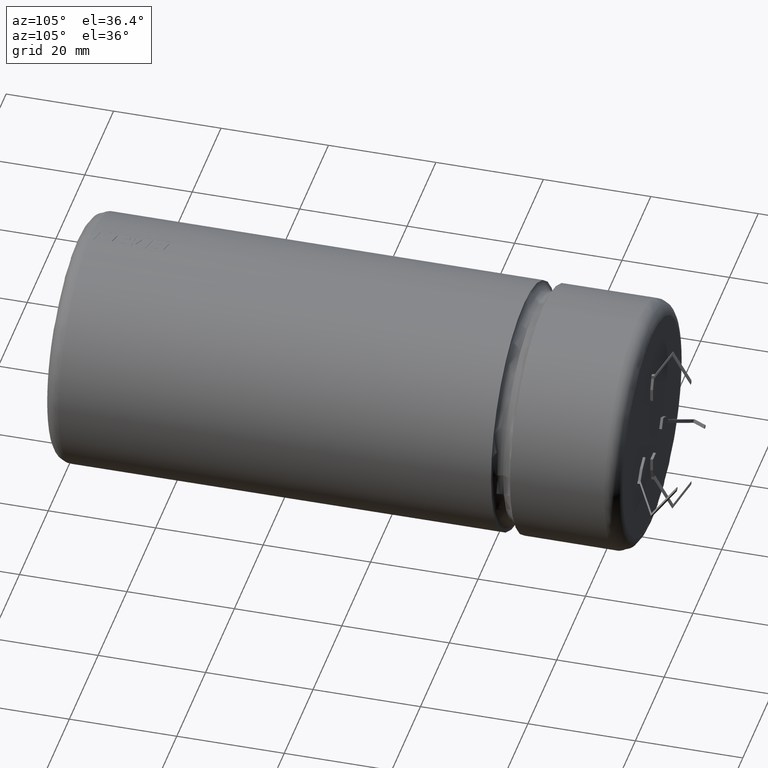
[diagram: clean part render]
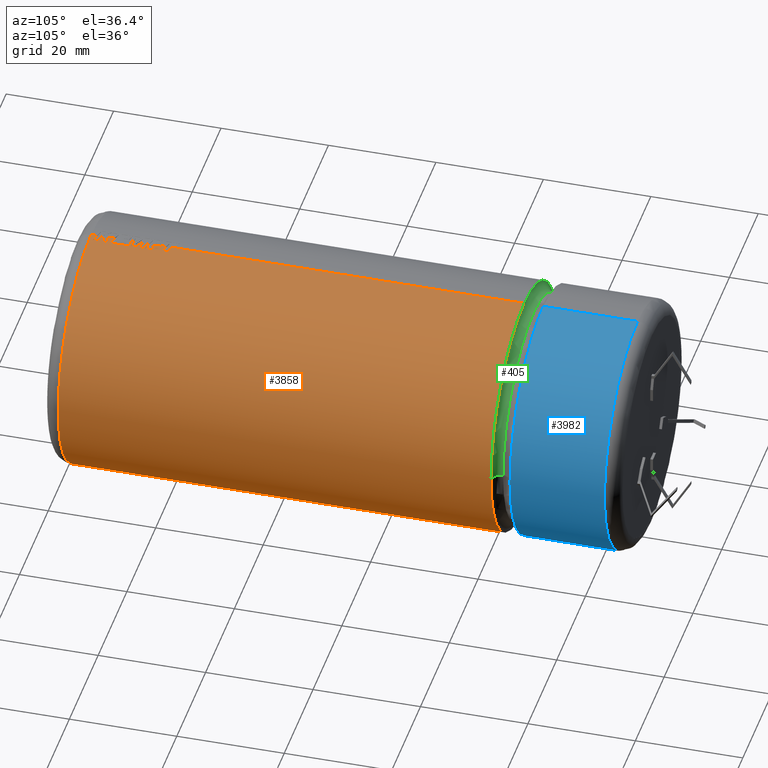
[diagram: same view with three faces highlighted in distinct colors, each labeled with its STEP entity id]
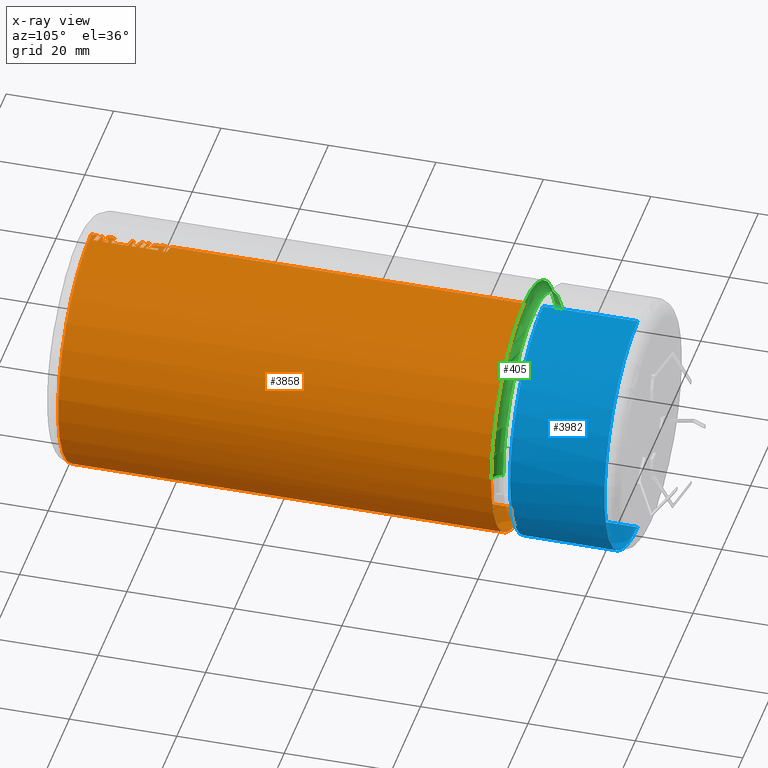
[diagram: x-ray of the same camera — body ghosted, the three highlighted faces saturated]
A machine part, auxiliary view with three faces highlighted in distinct colors.
The next image is the same camera in x-ray (body ghosted, the three faces saturated) — at least one of them is partly hidden behind the body in this view.
Their STEP definitions:

[orange] entity #3858 — the highlighted cylindrical surface (partial cylindrical patch) has radius 23 mm, axis along (-0, -1, -0).
#9 = ORIENTED_EDGE ( 'NONE', *, *, #4312, .F. ) ;
#13 = DIRECTION ( 'NONE',  ( 0.0000000000000000000, 0.0000000000000000000, -1.000000000000000000 ) ) ;
#17 = CARTESIAN_POINT ( 'NONE',  ( 1.534169148053103400, 15.36704791797069400, 22.94877611170500100 ) ) ;
#67 = ORIENTED_EDGE ( 'NONE', *, *, #3135, .F. ) ;
#85 = VECTOR ( 'NONE', #3942, 1000.000000000000000 ) ;
#86 = VECTOR ( 'NONE', #462, 1000.000000000000000 ) ;
#89 = CARTESIAN_POINT ( 'NONE',  ( -5.545487515719014800E-010, 13.15961153160837000, 22.99999126037143100 ) ) ;
#98 = DIRECTION ( 'NONE',  ( 0.0000000000000000000, 1.000000000000000000, 0.0000000000000000000 ) ) ;
#100 = CARTESIAN_POINT ( 'NONE',  ( 1.534169148053099000, 13.08215582357082100, 22.94877611170500100 ) ) ;
#107 = EDGE_CURVE ( 'NONE', #2229, #1386, #1707, .T. ) ;
#137 = VECTOR ( 'NONE', #1677, 1000.000000000000000 ) ;
#145 = VECTOR ( 'NONE', #4190, 1000.000000000000000 ) ;
#147 = VERTEX_POINT ( 'NONE', #885 ) ;
#148 = ORIENTED_EDGE ( 'NONE', *, *, #1935, .F. ) ;
#161 = EDGE_CURVE ( 'NONE', #1588, #3467, #3480, .T. ) ;
#167 = ORIENTED_EDGE ( 'NONE', *, *, #2162, .T. ) ;
#183 = CARTESIAN_POINT ( 'NONE',  ( 0.5117685127285573900, 10.16392618901911700, 22.99998708028456200 ) ) ;
#184 = CARTESIAN_POINT ( 'NONE',  ( 1.702671213006160400E-012, 15.67845905064953300, 22.99999999087098600 ) ) ;
#210 = VERTEX_POINT ( 'NONE', #1047 ) ;
#238 = B_SPLINE_CURVE_WITH_KNOTS ( 'NONE', 3,
 ( #3579, #1003, #3950, #1783 ),
 .UNSPECIFIED., .F., .F.,
 ( 4, 4 ),
 ( 0.4297595284897932600, 1.000000000000000000 ),
 .UNSPECIFIED. ) ;
#242 = CARTESIAN_POINT ( 'NONE',  ( 2.816687638038912400E-015, 107.0000000000000000, 23.00000000000000000 ) ) ;
#269 = DIRECTION ( 'NONE',  ( -1.264299165142146600E-018, 1.000000000000000000, -0.0000000000000000000 ) ) ;
#270 = VERTEX_POINT ( 'NONE', #4712 ) ;
#273 = B_SPLINE_CURVE_WITH_KNOTS ( 'NONE', 3,
 ( #3524, #4211, #977, #2041 ),
 .UNSPECIFIED., .F., .F.,
 ( 4, 4 ),
 ( 0.06501777450579886200, 1.000000000000000000 ),
 .UNSPECIFIED. ) ;
#289 = CARTESIAN_POINT ( 'NONE',  ( 0.5117686438564941200, 11.83874825964579200, 22.99998686078155100 ) ) ;
#303 = EDGE_CURVE ( 'NONE', #2813, #1579, #4490, .T. ) ;
#311 = B_SPLINE_CURVE_WITH_KNOTS ( 'NONE', 3,
 ( #1396, #2500, #3243, #341 ),
 .UNSPECIFIED., .F., .F.,
 ( 4, 4 ),
 ( 0.4923300189517310100, 1.000000000000000000 ),
 .UNSPECIFIED. ) ;
#320 = CARTESIAN_POINT ( 'NONE',  ( 1.534169148053099000, 11.94969606425973300, 22.94877611170500100 ) ) ;
#341 = CARTESIAN_POINT ( 'NONE',  ( 1.534169148053099000, 13.08215582357082100, 22.94877611170500100 ) ) ;
#347 = VERTEX_POINT ( 'NONE', #4670 ) ;
#365 = EDGE_CURVE ( 'NONE', #3432, #210, #838, .T. ) ;
#372 = EDGE_CURVE ( 'NONE', #2841, #270, #3568, .T. ) ;
#385 = VECTOR ( 'NONE', #2727, 1000.000000000000000 ) ;
#399 = VERTEX_POINT ( 'NONE', #1322 ) ;
#408 = CARTESIAN_POINT ( 'NONE',  ( -1.580628256438853400E-010, 4.738169971809772300, 22.99999995430822300 ) ) ;
#411 = VERTEX_POINT ( 'NONE', #1732 ) ;
#444 = CARTESIAN_POINT ( 'NONE',  ( 1.342772583593151200, 15.42147901137058600, 22.96157133454427100 ) ) ;
#445 = CARTESIAN_POINT ( 'NONE',  ( -5.541144337341309400E-010, 3.805932655905925400, 22.99999126038471100 ) ) ;
#451 = B_SPLINE_CURVE_WITH_KNOTS ( 'NONE', 3,
 ( #445, #1179, #1495, #3382 ),
 .UNSPECIFIED., .F., .F.,
 ( 4, 4 ),
 ( 0.4923300189481510900, 1.000000000000000000 ),
 .UNSPECIFIED. ) ;
#453 = CARTESIAN_POINT ( 'NONE',  ( 0.5117690575717199800, 16.54241926910932700, 22.99999046607069500 ) ) ;
#462 = DIRECTION ( 'NONE',  ( -0.0000000000000000000, -1.000000000000000000, -0.0000000000000000000 ) ) ;
#472 = EDGE_CURVE ( 'NONE', #147, #4082, #1454, .T. ) ;
#484 = ORIENTED_EDGE ( 'NONE', *, *, #3041, .F. ) ;
#508 = VECTOR ( 'NONE', #523, 1000.000000000000000 ) ;
#523 = DIRECTION ( 'NONE',  ( 0.0000000000000000000, -1.000000000000000000, 0.0000000000000000000 ) ) ;
#546 = CARTESIAN_POINT ( 'NONE',  ( 0.5117699352664487600, 4.518030646898691500, 22.99999909383691900 ) ) ;
#564 = CARTESIAN_POINT ( 'NONE',  ( -2.719909890773063200E-009, 10.31086991139122600, 22.99999469648611600 ) ) ;
#567 = CARTESIAN_POINT ( 'NONE',  ( -5.545487515719014800E-010, 13.15961153160837000, 22.99999126037143100 ) ) ;
#569 = ORIENTED_EDGE ( 'NONE', *, *, #1118, .F. ) ;
#597 = ORIENTED_EDGE ( 'NONE', *, *, #3039, .T. ) ;
#619 = B_SPLINE_CURVE_WITH_KNOTS ( 'NONE', 3,
 ( #17, #444, #4741, #736 ),
 .UNSPECIFIED., .F., .F.,
 ( 4, 4 ),
 ( 0.0000000000000000000, 1.000000000000000000 ),
 .UNSPECIFIED. ) ;
#627 = EDGE_CURVE ( 'NONE', #719, #3525, #729, .T. ) ;
#642 = VERTEX_POINT ( 'NONE', #1191 ) ;
#652 = ORIENTED_EDGE ( 'NONE', *, *, #3984, .F. ) ;
#670 = CARTESIAN_POINT ( 'NONE',  ( 0.0000000000000000000, 107.0000000000000000, -23.00000000000000000 ) ) ;
#699 = CARTESIAN_POINT ( 'NONE',  ( 0.2083069767634659600, 14.32130150560970200, 22.99905668073000700 ) ) ;
#719 = VERTEX_POINT ( 'NONE', #4074 ) ;
#729 = LINE ( 'NONE', #3989, #2834 ) ;
#736 = CARTESIAN_POINT ( 'NONE',  ( 0.9595591795991091900, 15.53034119635228500, 22.97997489513091600 ) ) ;
#739 = ORIENTED_EDGE ( 'NONE', *, *, #1600, .T. ) ;
#774 = VECTOR ( 'NONE', #2448, 1000.000000000000000 ) ;
#794 = CARTESIAN_POINT ( 'NONE',  ( 1.534169148053099000, 3.364711372035880600, 22.94877611170500100 ) ) ;
#805 = CARTESIAN_POINT ( 'NONE',  ( 2.816687638038912400E-015, 107.0000000000000000, 23.00000000000000000 ) ) ;
#809 = VERTEX_POINT ( 'NONE', #1218 ) ;
#820 = CARTESIAN_POINT ( 'NONE',  ( 0.5117675329517238400, 6.906550024290792700, 22.99998215737006300 ) ) ;
#822 = VERTEX_POINT ( 'NONE', #3431 ) ;
#838 = LINE ( 'NONE', #1254, #508 ) ;
#881 = VECTOR ( 'NONE', #3224, 1000.000000000000000 ) ;
#885 = CARTESIAN_POINT ( 'NONE',  ( 2.816687638038912400E-015, 83.23083999999998600, 23.00000000000000000 ) ) ;
#897 = ORIENTED_EDGE ( 'NONE', *, *, #3957, .T. ) ;
#909 = CARTESIAN_POINT ( 'NONE',  ( 1.023536417692448600, 10.01698266052192200, 22.98291287686808100 ) ) ;
#926 = DIRECTION ( 'NONE',  ( -0.0000000000000000000, -1.000000000000000000, -0.0000000000000000000 ) ) ;
#952 = CARTESIAN_POINT ( 'NONE',  ( -2.686691147045094000E-009, 12.39058633229400600, 22.99999457792159100 ) ) ;
#964 = CARTESIAN_POINT ( 'NONE',  ( 0.2083069767634659600, 14.32130150560970200, 22.99905668073000700 ) ) ;
#977 = CARTESIAN_POINT ( 'NONE',  ( 1.023538858133867400, 5.149015077030108900, 22.98291271371995100 ) ) ;
#987 = CARTESIAN_POINT ( 'NONE',  ( 1.534169148053099000, 13.08215582357082100, 22.94877611170500100 ) ) ;
#1003 = CARTESIAN_POINT ( 'NONE',  ( 0.5117684314080288600, 10.54955777684789600, 22.99998709882466100 ) ) ;
#1018 = EDGE_CURVE ( 'NONE', #1588, #4536, #4702, .T. ) ;
#1031 = ORIENTED_EDGE ( 'NONE', *, *, #2243, .T. ) ;
#1047 = CARTESIAN_POINT ( 'NONE',  ( 0.9595591795991136300, 14.10675263911506700, 22.97997489513091600 ) ) ;
#1060 = EDGE_CURVE ( 'NONE', #2806, #809, #238, .T. ) ;
#1118 = EDGE_CURVE ( 'NONE', #4082, #2813, #2483, .T. ) ;
#1136 = CYLINDRICAL_SURFACE ( 'NONE', #1985, 23.00000000000000000 ) ;
#1179 = CARTESIAN_POINT ( 'NONE',  ( 0.5117675325467899700, 3.658859492326283800, 22.99998215745202400 ) ) ;
#1191 = CARTESIAN_POINT ( 'NONE',  ( -8.650916759431642100E-011, 4.664714496277658100, 22.99999995432964900 ) ) ;
#1210 = ORIENTED_EDGE ( 'NONE', *, *, #3921, .T. ) ;
#1218 = CARTESIAN_POINT ( 'NONE',  ( 1.534169148053099000, 10.49218539282259500, 22.94877611170500100 ) ) ;
#1220 = B_SPLINE_CURVE_WITH_KNOTS ( 'NONE', 3,
 ( #4319, #2885, #289, #2118 ),
 .UNSPECIFIED., .F., .F.,
 ( 4, 4 ),
 ( 0.0000000000000000000, 0.5675075130715838700 ),
 .UNSPECIFIED. ) ;
#1224 = CARTESIAN_POINT ( 'NONE',  ( 1.534169148053099000, 6.274610831861079600, 22.94877611170500100 ) ) ;
#1239 = CARTESIAN_POINT ( 'NONE',  ( 0.2083069767634705400, 15.61894881153988400, 22.99905668073000700 ) ) ;
#1250 = EDGE_CURVE ( 'NONE', #2603, #2841, #2491, .T. ) ;
#1254 = CARTESIAN_POINT ( 'NONE',  ( 0.9595591795991091900, 15.53034119635228500, 22.97997489513091600 ) ) ;
#1277 = CARTESIAN_POINT ( 'NONE',  ( 0.2083069767634659600, 14.32130150560970200, 22.99905668073000700 ) ) ;
#1282 = LINE ( 'NONE', #320, #85 ) ;
#1296 = VERTEX_POINT ( 'NONE', #794 ) ;
#1322 = CARTESIAN_POINT ( 'NONE',  ( -2.719909890773063200E-009, 10.31086991139122600, 22.99999469648611600 ) ) ;
#1347 = LINE ( 'NONE', #4031, #1405 ) ;
#1375 = CARTESIAN_POINT ( 'NONE',  ( 1.534169148053099000, 6.612015992414371500, 22.94877611170500100 ) ) ;
#1386 = VERTEX_POINT ( 'NONE', #1563 ) ;
#1396 = CARTESIAN_POINT ( 'NONE',  ( -5.549950498436779800E-010, 13.52376457485996600, 22.99999126035782000 ) ) ;
#1397 = LINE ( 'NONE', #3025, #385 ) ;
#1405 = VECTOR ( 'NONE', #4063, 1000.000000000000000 ) ;
#1454 = CIRCLE ( 'NONE', #3052, 23.00000000000000000 ) ;
#1480 = DIRECTION ( 'NONE',  ( 0.0000000000000000000, 1.000000000000000000, 0.0000000000000000000 ) ) ;
#1483 = CARTESIAN_POINT ( 'NONE',  ( 0.5117690575498696800, 17.40382186468515300, 22.99999046607695500 ) ) ;
#1485 = EDGE_LOOP ( 'NONE', ( #2588, #897, #2654, #148, #4194, #1554, #4115, #3335, #2342, #2115, #2211, #4026, #484, #2777, #1711, #2712, #2213, #3935, #1973, #3539, #3953, #739, #9, #2405, #3334, #3202, #167, #4081, #2301, #1517, #1210, #2385, #67, #652, #1031, #597, #4250, #569 ) ) ;
#1495 = CARTESIAN_POINT ( 'NONE',  ( 1.023534972328162400, 3.511786359071848100, 22.98291297349342700 ) ) ;
#1496 = VERTEX_POINT ( 'NONE', #4554 ) ;
#1505 = CARTESIAN_POINT ( 'NONE',  ( -2.774080918137409300E-009, 17.55091878504546400, 22.99999674500881900 ) ) ;
#1517 = ORIENTED_EDGE ( 'NONE', *, *, #1607, .F. ) ;
#1546 = B_SPLINE_CURVE_WITH_KNOTS ( 'NONE', 3,
 ( #2578, #453, #4043, #1887 ),
 .UNSPECIFIED., .F., .F.,
 ( 4, 4 ),
 ( 0.3708533802764623600, 1.000000000000000000 ),
 .UNSPECIFIED. ) ;
#1549 = CARTESIAN_POINT ( 'NONE',  ( 1.023534973159984800, 6.759283936277891600, 22.98291297343781600 ) ) ;
#1554 = ORIENTED_EDGE ( 'NONE', *, *, #627, .T. ) ;
#1563 = CARTESIAN_POINT ( 'NONE',  ( 1.534169148053103400, 9.870037818277833000, 22.94877611170500100 ) ) ;
#1566 = EDGE_CURVE ( 'NONE', #3722, #1584, #3004, .T. ) ;
#1572 = VECTOR ( 'NONE', #1590, 1000.000000000000000 ) ;
#1579 = VERTEX_POINT ( 'NONE', #2390 ) ;
#1584 = VERTEX_POINT ( 'NONE', #567 ) ;
#1588 = VERTEX_POINT ( 'NONE', #3841 ) ;
#1590 = DIRECTION ( 'NONE',  ( 0.0000000000000000000, 1.000000000000000000, 0.0000000000000000000 ) ) ;
#1600 = EDGE_CURVE ( 'NONE', #2806, #399, #3666, .T. ) ;
#1607 = EDGE_CURVE ( 'NONE', #1990, #2603, #273, .T. ) ;
#1611 = CARTESIAN_POINT ( 'NONE',  ( 1.534169148053099000, 6.612015992414371500, 22.94877611170500100 ) ) ;
#1657 = DIRECTION ( 'NONE',  ( -0.0000000000000000000, -1.000000000000000000, -0.0000000000000000000 ) ) ;
#1666 = CARTESIAN_POINT ( 'NONE',  ( 1.023536368501108300, 12.09666031236955600, 22.98291288015661500 ) ) ;
#1673 = CARTESIAN_POINT ( 'NONE',  ( -8.650916759431642100E-011, 4.664714496277658100, 22.99999995432964900 ) ) ;
#1677 = DIRECTION ( 'NONE',  ( -0.0000000000000000000, -1.000000000000000000, -0.0000000000000000000 ) ) ;
#1691 = EDGE_CURVE ( 'NONE', #4290, #2229, #2016, .T. ) ;
#1707 = LINE ( 'NONE', #2590, #4323 ) ;
#1711 = ORIENTED_EDGE ( 'NONE', *, *, #2466, .F. ) ;
#1722 = CARTESIAN_POINT ( 'NONE',  ( 0.5117684803295734500, 12.24362322776237600, 22.99998689779360500 ) ) ;
#1729 = VERTEX_POINT ( 'NONE', #2459 ) ;
#1732 = CARTESIAN_POINT ( 'NONE',  ( -2.774080918137409300E-009, 17.55091878504546400, 22.99999674500881900 ) ) ;
#1750 = VECTOR ( 'NONE', #1657, 1000.000000000000000 ) ;
#1753 = CARTESIAN_POINT ( 'NONE',  ( 0.7092679677234032800, 14.17826893025904200, 22.99042613500494900 ) ) ;
#1760 = DIRECTION ( 'NONE',  ( 0.0000000000000000000, 0.0000000000000000000, 1.000000000000000000 ) ) ;
#1783 = CARTESIAN_POINT ( 'NONE',  ( 1.534169148053099000, 10.49218539282259500, 22.94877611170500100 ) ) ;
#1785 = CARTESIAN_POINT ( 'NONE',  ( 1.534169148053099000, 4.224663171668904500, 22.94877611170500100 ) ) ;
#1792 = CARTESIAN_POINT ( 'NONE',  ( -7.610665382555494100E-009, 12.10891303514910100, 22.99999456251317300 ) ) ;
#1841 = LINE ( 'NONE', #2286, #3310 ) ;
#1847 = VERTEX_POINT ( 'NONE', #2906 ) ;
#1859 = CARTESIAN_POINT ( 'NONE',  ( 1.534169148053103400, 17.10962756807195400, 22.94877611170500100 ) ) ;
#1881 = CARTESIAN_POINT ( 'NONE',  ( 1.023538831489752400, 4.371347059923540000, 22.98291271550116100 ) ) ;
#1887 = CARTESIAN_POINT ( 'NONE',  ( 1.534169148053099000, 16.24814012137222700, 22.94877611170500100 ) ) ;
#1892 = DIRECTION ( 'NONE',  ( -0.0000000000000000000, -1.000000000000000000, -0.0000000000000000000 ) ) ;
#1896 = CARTESIAN_POINT ( 'NONE',  ( 1.534169148053099000, 4.224663171668904500, 22.94877611170500100 ) ) ;
#1916 = CIRCLE ( 'NONE', #3026, 23.00000000000000000 ) ;
#1935 = EDGE_CURVE ( 'NONE', #4358, #2344, #2714, .T. ) ;
#1940 = EDGE_CURVE ( 'NONE', #719, #4358, #1546, .T. ) ;
#1961 = DIRECTION ( 'NONE',  ( 0.0000000000000000000, 1.000000000000000000, 0.0000000000000000000 ) ) ;
#1971 = CARTESIAN_POINT ( 'NONE',  ( 2.816687638038912400E-015, 107.0000000000000000, 23.00000000000000000 ) ) ;
#1972 = CARTESIAN_POINT ( 'NONE',  ( -1.670155970252180200E-010, 5.638215953693872100, 22.99999995430554000 ) ) ;
#1973 = ORIENTED_EDGE ( 'NONE', *, *, #3079, .F. ) ;
#1985 = AXIS2_PLACEMENT_3D ( 'NONE', #2583, #4386, #13 ) ;
#1990 = VERTEX_POINT ( 'NONE', #408 ) ;
#1992 = EDGE_CURVE ( 'NONE', #2344, #411, #3734, .T. ) ;
#2016 = LINE ( 'NONE', #1375, #881 ) ;
#2041 = CARTESIAN_POINT ( 'NONE',  ( 1.534169148053103400, 5.354437851732257900, 22.94877611170500100 ) ) ;
#2101 = EDGE_CURVE ( 'NONE', #2797, #3432, #619, .T. ) ;
#2115 = ORIENTED_EDGE ( 'NONE', *, *, #365, .F. ) ;
#2118 = CARTESIAN_POINT ( 'NONE',  ( -7.610665382555494100E-009, 12.10891303514910100, 22.99999456251317300 ) ) ;
#2138 = DIRECTION ( 'NONE',  ( 0.0000000000000000000, 1.000000000000000000, 0.0000000000000000000 ) ) ;
#2162 = EDGE_CURVE ( 'NONE', #2167, #270, #3575, .T. ) ;
#2167 = VERTEX_POINT ( 'NONE', #2997 ) ;
#2211 = ORIENTED_EDGE ( 'NONE', *, *, #2101, .F. ) ;
#2213 = ORIENTED_EDGE ( 'NONE', *, *, #161, .F. ) ;
#2229 = VERTEX_POINT ( 'NONE', #2636 ) ;
#2236 = EDGE_CURVE ( 'NONE', #1496, #3525, #4387, .T. ) ;
#2243 = EDGE_CURVE ( 'NONE', #1729, #347, #3396, .T. ) ;
#2261 = AXIS2_PLACEMENT_3D ( 'NONE', #3562, #269, #2816 ) ;
#2269 = CARTESIAN_POINT ( 'NONE',  ( -5.554290830783782400E-010, 7.053816142662740600, 22.99999126034453700 ) ) ;
#2277 = B_SPLINE_CURVE_WITH_KNOTS ( 'NONE', 3,
 ( #1896, #1881, #546, #1673 ),
 .UNSPECIFIED., .F., .F.,
 ( 4, 4 ),
 ( 0.0000000000000000000, 0.9349822280238790900 ),
 .UNSPECIFIED. ) ;
#2286 = CARTESIAN_POINT ( 'NONE',  ( 1.534169148053099000, 10.49218539282259500, 22.94877611170500100 ) ) ;
#2301 = ORIENTED_EDGE ( 'NONE', *, *, #1250, .F. ) ;
#2342 = ORIENTED_EDGE ( 'NONE', *, *, #3805, .F. ) ;
#2344 = VERTEX_POINT ( 'NONE', #2881 ) ;
#2373 = CARTESIAN_POINT ( 'NONE',  ( 1.534169148053099000, 6.274610831861079600, 22.94877611170500100 ) ) ;
#2385 = ORIENTED_EDGE ( 'NONE', *, *, #2750, .F. ) ;
#2387 = DIRECTION ( 'NONE',  ( 0.0000000000000000000, 1.000000000000000000, 0.0000000000000000000 ) ) ;
#2390 = CARTESIAN_POINT ( 'NONE',  ( 2.816687638038913100E-015, 2.649600000000002200, -23.00000000000000000 ) ) ;
#2400 = CARTESIAN_POINT ( 'NONE',  ( -1.575713305300648400E-010, 10.57824387147476300, 22.99999470414413600 ) ) ;
#2405 = ORIENTED_EDGE ( 'NONE', *, *, #107, .F. ) ;
#2423 = B_SPLINE_CURVE_WITH_KNOTS ( 'NONE', 3,
 ( #4534, #909, #183, #564 ),
 .UNSPECIFIED., .F., .F.,
 ( 4, 4 ),
 ( 0.0000000000000000000, 0.5702404594550203300 ),
 .UNSPECIFIED. ) ;
#2446 = CARTESIAN_POINT ( 'NONE',  ( 2.816687638038912400E-015, 107.0000000000000000, 23.00000000000000000 ) ) ;
#2448 = DIRECTION ( 'NONE',  ( 0.0000000000000000000, 1.000000000000000000, 0.0000000000000000000 ) ) ;
#2459 = CARTESIAN_POINT ( 'NONE',  ( -5.541144337341309400E-010, 3.805932655905925400, 22.99999126038471100 ) ) ;
#2466 = EDGE_CURVE ( 'NONE', #822, #1584, #4320, .T. ) ;
#2483 = CIRCLE ( 'NONE', #2261, 23.00000000000000000 ) ;
#2491 = LINE ( 'NONE', #2536, #4075 ) ;
#2500 = CARTESIAN_POINT ( 'NONE',  ( 0.5117675328177939700, 13.37656225592055400, 22.99998215739716700 ) ) ;
#2536 = CARTESIAN_POINT ( 'NONE',  ( 1.534169148053099000, 5.354437851732257900, 22.94877611170500100 ) ) ;
#2555 = EDGE_CURVE ( 'NONE', #4378, #2797, #4589, .T. ) ;
#2578 = CARTESIAN_POINT ( 'NONE',  ( -2.775548566460160000E-009, 16.68955861497572700, 22.99999674500666200 ) ) ;
#2583 = CARTESIAN_POINT ( 'NONE',  ( 0.0000000000000000000, 107.0000000000000000, 0.0000000000000000000 ) ) ;
#2588 = ORIENTED_EDGE ( 'NONE', *, *, #472, .F. ) ;
#2590 = CARTESIAN_POINT ( 'NONE',  ( 1.534169148053099000, 9.331734601897498000, 22.94877611170500100 ) ) ;
#2603 = VERTEX_POINT ( 'NONE', #3013 ) ;
#2636 = CARTESIAN_POINT ( 'NONE',  ( 1.534169148053099000, 9.331734601897498000, 22.94877611170500100 ) ) ;
#2648 = CARTESIAN_POINT ( 'NONE',  ( 0.5117675326806379000, 13.01247456859629100, 22.99998215742492700 ) ) ;
#2654 = ORIENTED_EDGE ( 'NONE', *, *, #1992, .F. ) ;
#2685 = B_SPLINE_CURVE_WITH_KNOTS ( 'NONE', 3,
 ( #2269, #820, #1549, #2947 ),
 .UNSPECIFIED., .F., .F.,
 ( 4, 4 ),
 ( 0.4923300189535007600, 1.000000000000000000 ),
 .UNSPECIFIED. ) ;
#2706 = CARTESIAN_POINT ( 'NONE',  ( 0.1388732158246602500, 15.63878555807678900, 22.99968555594986000 ) ) ;
#2712 = ORIENTED_EDGE ( 'NONE', *, *, #2869, .F. ) ;
#2714 = LINE ( 'NONE', #3701, #4186 ) ;
#2727 = DIRECTION ( 'NONE',  ( -0.0000000000000000000, -1.000000000000000000, -0.0000000000000000000 ) ) ;
#2750 = EDGE_CURVE ( 'NONE', #3273, #642, #2277, .T. ) ;
#2773 = B_SPLINE_CURVE_WITH_KNOTS ( 'NONE', 3,
 ( #3205, #1753, #4692, #699 ),
 .UNSPECIFIED., .F., .F.,
 ( 4, 4 ),
 ( 0.0000000000000000000, 1.000000000000000000 ),
 .UNSPECIFIED. ) ;
#2777 = ORIENTED_EDGE ( 'NONE', *, *, #1566, .T. ) ;
#2789 = CARTESIAN_POINT ( 'NONE',  ( 1.534169148053099000, 16.24814012137222700, 22.94877611170500100 ) ) ;
#2797 = VERTEX_POINT ( 'NONE', #3447 ) ;
#2806 = VERTEX_POINT ( 'NONE', #2400 ) ;
#2813 = VERTEX_POINT ( 'NONE', #3147 ) ;
#2816 = DIRECTION ( 'NONE',  ( -1.000000000000000000, 0.0000000000000000000, 0.0000000000000000000 ) ) ;
#2829 = CARTESIAN_POINT ( 'NONE',  ( 23.00000000000000000, 83.23083999999998600, 2.816687638038913100E-015 ) ) ;
#2830 = VECTOR ( 'NONE', #2387, 1000.000000000000000 ) ;
#2834 = VECTOR ( 'NONE', #1892, 1000.000000000000000 ) ;
#2841 = VERTEX_POINT ( 'NONE', #2373 ) ;
#2850 = CARTESIAN_POINT ( 'NONE',  ( -8.288284063117892200E-017, 83.23083999999998600, 0.0000000000000000000 ) ) ;
#2869 = EDGE_CURVE ( 'NONE', #3467, #822, #1282, .T. ) ;
#2881 = CARTESIAN_POINT ( 'NONE',  ( 1.534169148053103400, 17.10962756807195400, 22.94877611170500100 ) ) ;
#2885 = CARTESIAN_POINT ( 'NONE',  ( 1.023536799916025600, 11.56858377932368900, 22.98291285131571400 ) ) ;
#2906 = CARTESIAN_POINT ( 'NONE',  ( 1.534169148053103400, 11.29841721896851500, 22.94877611170500100 ) ) ;
#2907 = VECTOR ( 'NONE', #4306, 1000.000000000000000 ) ;
#2938 = DIRECTION ( 'NONE',  ( 0.0000000000000000000, 1.000000000000000000, 0.0000000000000000000 ) ) ;
#2947 = CARTESIAN_POINT ( 'NONE',  ( 1.534169148053099000, 6.612015992414371500, 22.94877611170500100 ) ) ;
#2952 = CARTESIAN_POINT ( 'NONE',  ( 1.023537267806376500, 17.25672520762280000, 22.98291282003635800 ) ) ;
#2997 = CARTESIAN_POINT ( 'NONE',  ( -5.554290830783782400E-010, 7.053816142662740600, 22.99999126034453700 ) ) ;
#3004 = LINE ( 'NONE', #242, #137 ) ;
#3013 = CARTESIAN_POINT ( 'NONE',  ( 1.534169148053103400, 5.354437851732257900, 22.94877611170500100 ) ) ;
#3025 = CARTESIAN_POINT ( 'NONE',  ( 2.816687638038912400E-015, 107.0000000000000000, 23.00000000000000000 ) ) ;
#3026 = AXIS2_PLACEMENT_3D ( 'NONE', #3933, #2138, #1760 ) ;
#3039 = EDGE_CURVE ( 'NONE', #347, #1579, #1916, .T. ) ;
#3041 = EDGE_CURVE ( 'NONE', #3722, #4378, #311, .T. ) ;
#3052 = AXIS2_PLACEMENT_3D ( 'NONE', #2850, #4265, #4246 ) ;
#3079 = EDGE_CURVE ( 'NONE', #1847, #4536, #1220, .T. ) ;
#3094 = CARTESIAN_POINT ( 'NONE',  ( 1.534169148053099000, 11.94969606425973300, 22.94877611170500100 ) ) ;
#3135 = EDGE_CURVE ( 'NONE', #1296, #3273, #3390, .T. ) ;
#3147 = CARTESIAN_POINT ( 'NONE',  ( 0.0000000000000000000, 83.23083999999998600, -23.00000000000000000 ) ) ;
#3202 = ORIENTED_EDGE ( 'NONE', *, *, #3379, .F. ) ;
#3205 = CARTESIAN_POINT ( 'NONE',  ( 0.9595591795991136300, 14.10675263911506700, 22.97997489513091600 ) ) ;
#3224 = DIRECTION ( 'NONE',  ( 0.0000000000000000000, 1.000000000000000000, 0.0000000000000000000 ) ) ;
#3243 = CARTESIAN_POINT ( 'NONE',  ( 1.023534972884864400, 13.22935996732900100, 22.98291297345620500 ) ) ;
#3253 = CARTESIAN_POINT ( 'NONE',  ( 1.534169148053099000, 3.364711372035880600, 22.94877611170500100 ) ) ;
#3273 = VERTEX_POINT ( 'NONE', #1785 ) ;
#3310 = VECTOR ( 'NONE', #98, 1000.000000000000000 ) ;
#3334 = ORIENTED_EDGE ( 'NONE', *, *, #1691, .F. ) ;
#3335 = ORIENTED_EDGE ( 'NONE', *, *, #4717, .F. ) ;
#3379 = EDGE_CURVE ( 'NONE', #2167, #4290, #2685, .T. ) ;
#3382 = CARTESIAN_POINT ( 'NONE',  ( 1.534169148053099000, 3.364711372035880600, 22.94877611170500100 ) ) ;
#3390 = LINE ( 'NONE', #3253, #2830 ) ;
#3396 = LINE ( 'NONE', #1971, #145 ) ;
#3410 = CARTESIAN_POINT ( 'NONE',  ( 1.702671213006160400E-012, 15.67845905064953300, 22.99999999087098600 ) ) ;
#3430 = CARTESIAN_POINT ( 'NONE',  ( 1.534169148053103400, 12.71819884877911700, 22.94877611170500100 ) ) ;
#3431 = CARTESIAN_POINT ( 'NONE',  ( 1.534169148053103400, 12.71819884877911700, 22.94877611170500100 ) ) ;
#3432 = VERTEX_POINT ( 'NONE', #4367 ) ;
#3447 = CARTESIAN_POINT ( 'NONE',  ( 1.534169148053103400, 15.36704791797069400, 22.94877611170500100 ) ) ;
#3467 = VERTEX_POINT ( 'NONE', #3094 ) ;
#3480 = B_SPLINE_CURVE_WITH_KNOTS ( 'NONE', 3,
 ( #952, #1722, #1666, #3831 ),
 .UNSPECIFIED., .F., .F.,
 ( 4, 4 ),
 ( 0.4324924638743291000, 1.000000000000000000 ),
 .UNSPECIFIED. ) ;
#3490 = FACE_OUTER_BOUND ( 'NONE', #1485, .T. ) ;
#3524 = CARTESIAN_POINT ( 'NONE',  ( -1.580628256438853400E-010, 4.738169971809772300, 22.99999995430822300 ) ) ;
#3525 = VERTEX_POINT ( 'NONE', #3410 ) ;
#3539 = ORIENTED_EDGE ( 'NONE', *, *, #4215, .F. ) ;
#3562 = CARTESIAN_POINT ( 'NONE',  ( -8.288284063117892200E-017, 83.23083999999998600, 0.0000000000000000000 ) ) ;
#3568 = B_SPLINE_CURVE_WITH_KNOTS ( 'NONE', 3,
 ( #1224, #4139, #3793, #1972 ),
 .UNSPECIFIED., .F., .F.,
 ( 4, 4 ),
 ( 0.0000000000000000000, 0.9349822251776069800 ),
 .UNSPECIFIED. ) ;
#3575 = LINE ( 'NONE', #805, #86 ) ;
#3579 = CARTESIAN_POINT ( 'NONE',  ( -1.575713305300648400E-010, 10.57824387147476300, 22.99999470414413600 ) ) ;
#3666 = LINE ( 'NONE', #2446, #3967 ) ;
#3701 = CARTESIAN_POINT ( 'NONE',  ( 1.534169148053099000, 16.24814012137222700, 22.94877611170500100 ) ) ;
#3722 = VERTEX_POINT ( 'NONE', #4106 ) ;
#3734 = B_SPLINE_CURVE_WITH_KNOTS ( 'NONE', 3,
 ( #1859, #2952, #1483, #1505 ),
 .UNSPECIFIED., .F., .F.,
 ( 4, 4 ),
 ( 0.0000000000000000000, 0.6291466197334597600 ),
 .UNSPECIFIED. ) ;
#3792 = CARTESIAN_POINT ( 'NONE',  ( 0.06943660781940178000, 15.65862230439410400, 22.99999998668339500 ) ) ;
#3793 = CARTESIAN_POINT ( 'NONE',  ( 0.5117699154432987500, 5.850347679312461600, 22.99999909336215600 ) ) ;
#3805 = EDGE_CURVE ( 'NONE', #210, #4693, #2773, .T. ) ;
#3831 = CARTESIAN_POINT ( 'NONE',  ( 1.534169148053099000, 11.94969606425973300, 22.94877611170500100 ) ) ;
#3841 = CARTESIAN_POINT ( 'NONE',  ( -2.686691147045094000E-009, 12.39058633229400600, 22.99999457792159100 ) ) ;
#3858 = ADVANCED_FACE ( 'NONE', ( #3490 ), #1136, .T. ) ;
#3921 = EDGE_CURVE ( 'NONE', #1990, #642, #1347, .T. ) ;
#3933 = CARTESIAN_POINT ( 'NONE',  ( 0.0000000000000000000, 2.649600000000002200, 0.0000000000000000000 ) ) ;
#3935 = ORIENTED_EDGE ( 'NONE', *, *, #1018, .T. ) ;
#3942 = DIRECTION ( 'NONE',  ( 0.0000000000000000000, 1.000000000000000000, 0.0000000000000000000 ) ) ;
#3950 = CARTESIAN_POINT ( 'NONE',  ( 1.023536200189810700, 10.52087172300175400, 22.98291289140854600 ) ) ;
#3953 = ORIENTED_EDGE ( 'NONE', *, *, #1060, .F. ) ;
#3957 = EDGE_CURVE ( 'NONE', #147, #411, #1397, .T. ) ;
#3967 = VECTOR ( 'NONE', #926, 1000.000000000000000 ) ;
#3984 = EDGE_CURVE ( 'NONE', #1729, #1296, #451, .T. ) ;
#3989 = CARTESIAN_POINT ( 'NONE',  ( 2.816687638038912400E-015, 107.0000000000000000, 23.00000000000000000 ) ) ;
#4026 = ORIENTED_EDGE ( 'NONE', *, *, #2555, .F. ) ;
#4031 = CARTESIAN_POINT ( 'NONE',  ( 2.816687638038912400E-015, 107.0000000000000000, 23.00000000000000000 ) ) ;
#4043 = CARTESIAN_POINT ( 'NONE',  ( 1.023537267891233600, 16.39528018660541200, 22.98291282003068400 ) ) ;
#4063 = DIRECTION ( 'NONE',  ( -0.0000000000000000000, -1.000000000000000000, -0.0000000000000000000 ) ) ;
#4074 = CARTESIAN_POINT ( 'NONE',  ( -2.775548566460160000E-009, 16.68955861497572700, 22.99999674500666200 ) ) ;
#4075 = VECTOR ( 'NONE', #1480, 1000.000000000000000 ) ;
#4081 = ORIENTED_EDGE ( 'NONE', *, *, #372, .F. ) ;
#4082 = VERTEX_POINT ( 'NONE', #2829 ) ;
#4106 = CARTESIAN_POINT ( 'NONE',  ( -5.549950498436779800E-010, 13.52376457485996600, 22.99999126035782000 ) ) ;
#4115 = ORIENTED_EDGE ( 'NONE', *, *, #2236, .F. ) ;
#4139 = CARTESIAN_POINT ( 'NONE',  ( 1.023538861468409300, 6.062479054294929200, 22.98291271349702900 ) ) ;
#4186 = VECTOR ( 'NONE', #2938, 1000.000000000000000 ) ;
#4190 = DIRECTION ( 'NONE',  ( -0.0000000000000000000, -1.000000000000000000, -0.0000000000000000000 ) ) ;
#4194 = ORIENTED_EDGE ( 'NONE', *, *, #1940, .F. ) ;
#4211 = CARTESIAN_POINT ( 'NONE',  ( 0.5117699176482369800, 4.943592695746934500, 22.99999909341496700 ) ) ;
#4215 = EDGE_CURVE ( 'NONE', #809, #1847, #1841, .T. ) ;
#4246 = DIRECTION ( 'NONE',  ( -1.000000000000000000, 0.0000000000000000000, 0.0000000000000000000 ) ) ;
#4250 = ORIENTED_EDGE ( 'NONE', *, *, #303, .F. ) ;
#4265 = DIRECTION ( 'NONE',  ( -1.264299165142146600E-018, 1.000000000000000000, -0.0000000000000000000 ) ) ;
#4290 = VERTEX_POINT ( 'NONE', #1611 ) ;
#4306 = DIRECTION ( 'NONE',  ( -0.0000000000000000000, -1.000000000000000000, -0.0000000000000000000 ) ) ;
#4312 = EDGE_CURVE ( 'NONE', #1386, #399, #2423, .T. ) ;
#4319 = CARTESIAN_POINT ( 'NONE',  ( 1.534169148053103400, 11.29841721896851500, 22.94877611170500100 ) ) ;
#4320 = B_SPLINE_CURVE_WITH_KNOTS ( 'NONE', 3,
 ( #3430, #4529, #2648, #89 ),
 .UNSPECIFIED., .F., .F.,
 ( 4, 4 ),
 ( 0.0000000000000000000, 0.5076699810500802100 ),
 .UNSPECIFIED. ) ;
#4323 = VECTOR ( 'NONE', #1961, 1000.000000000000000 ) ;
#4358 = VERTEX_POINT ( 'NONE', #2789 ) ;
#4367 = CARTESIAN_POINT ( 'NONE',  ( 0.9595591795991091900, 15.53034119635228500, 22.97997489513091600 ) ) ;
#4378 = VERTEX_POINT ( 'NONE', #987 ) ;
#4386 = DIRECTION ( 'NONE',  ( -0.0000000000000000000, -1.000000000000000000, -0.0000000000000000000 ) ) ;
#4387 = B_SPLINE_CURVE_WITH_KNOTS ( 'NONE', 3,
 ( #1239, #2706, #3792, #184 ),
 .UNSPECIFIED., .F., .F.,
 ( 4, 4 ),
 ( 0.0000000000000000000, 0.3726641717019753600 ),
 .UNSPECIFIED. ) ;
#4490 = LINE ( 'NONE', #670, #2907 ) ;
#4529 = CARTESIAN_POINT ( 'NONE',  ( 1.023534972603114000, 12.86533763592060700, 22.98291297347503800 ) ) ;
#4534 = CARTESIAN_POINT ( 'NONE',  ( 1.534169148053103400, 9.870037818277833000, 22.94877611170500100 ) ) ;
#4536 = VERTEX_POINT ( 'NONE', #1792 ) ;
#4554 = CARTESIAN_POINT ( 'NONE',  ( 0.2083069767634705400, 15.61894881153988400, 22.99905668073000700 ) ) ;
#4571 = CARTESIAN_POINT ( 'NONE',  ( 2.816687638038912400E-015, 107.0000000000000000, 23.00000000000000000 ) ) ;
#4580 = LINE ( 'NONE', #1277, #774 ) ;
#4589 = LINE ( 'NONE', #100, #1572 ) ;
#4670 = CARTESIAN_POINT ( 'NONE',  ( 0.0000000000000000000, 2.649600000000002200, 23.00000000000000000 ) ) ;
#4692 = CARTESIAN_POINT ( 'NONE',  ( 0.4588060219055377100, 14.24978521446573900, 22.99678786164320600 ) ) ;
#4693 = VERTEX_POINT ( 'NONE', #964 ) ;
#4702 = LINE ( 'NONE', #4571, #1750 ) ;
#4712 = CARTESIAN_POINT ( 'NONE',  ( -1.670155970252180200E-010, 5.638215953693872100, 22.99999995430554000 ) ) ;
#4717 = EDGE_CURVE ( 'NONE', #4693, #1496, #4580, .T. ) ;
#4741 = CARTESIAN_POINT ( 'NONE',  ( 1.151215947040434000, 15.47591010295239200, 22.97197201386712400 ) ) ;

[blue] entity #3982 — the highlighted cylindrical surface (partial cylindrical patch) has radius 23 mm, axis along (-0, -1, -0).
#68 = CARTESIAN_POINT ( 'NONE',  ( 0.0000000000000000000, 107.0000000000000000, 0.0000000000000000000 ) ) ;
#73 = ORIENTED_EDGE ( 'NONE', *, *, #3729, .T. ) ;
#207 = DIRECTION ( 'NONE',  ( 0.0000000000000000000, 0.0000000000000000000, 1.000000000000000000 ) ) ;
#265 = AXIS2_PLACEMENT_3D ( 'NONE', #593, #3840, #207 ) ;
#297 = CYLINDRICAL_SURFACE ( 'NONE', #447, 23.00000000000000000 ) ;
#313 = AXIS2_PLACEMENT_3D ( 'NONE', #2527, #1083, #351 ) ;
#351 = DIRECTION ( 'NONE',  ( -1.000000000000000000, 0.0000000000000000000, 0.0000000000000000000 ) ) ;
#447 = AXIS2_PLACEMENT_3D ( 'NONE', #68, #4416, #2281 ) ;
#537 = EDGE_CURVE ( 'NONE', #2008, #4555, #2767, .T. ) ;
#593 = CARTESIAN_POINT ( 'NONE',  ( 0.0000000000000000000, 104.3503999999999900, 0.0000000000000000000 ) ) ;
#661 = FACE_OUTER_BOUND ( 'NONE', #4111, .T. ) ;
#1056 = CARTESIAN_POINT ( 'NONE',  ( 0.0000000000000000000, 104.3503999999999900, -23.00000000000000000 ) ) ;
#1083 = DIRECTION ( 'NONE',  ( -1.264299165142146600E-018, 1.000000000000000000, -0.0000000000000000000 ) ) ;
#1140 = ORIENTED_EDGE ( 'NONE', *, *, #537, .T. ) ;
#1521 = VERTEX_POINT ( 'NONE', #3475 ) ;
#1680 = LINE ( 'NONE', #2085, #2701 ) ;
#1888 = VERTEX_POINT ( 'NONE', #1056 ) ;
#1943 = CARTESIAN_POINT ( 'NONE',  ( -8.735633565318470400E-017, 86.76915999999999900, 0.0000000000000000000 ) ) ;
#2008 = VERTEX_POINT ( 'NONE', #2988 ) ;
#2085 = CARTESIAN_POINT ( 'NONE',  ( 0.0000000000000000000, 107.0000000000000000, -23.00000000000000000 ) ) ;
#2117 = CIRCLE ( 'NONE', #265, 23.00000000000000000 ) ;
#2281 = DIRECTION ( 'NONE',  ( 0.0000000000000000000, 0.0000000000000000000, -1.000000000000000000 ) ) ;
#2324 = DIRECTION ( 'NONE',  ( -1.264299165142146600E-018, 1.000000000000000000, -0.0000000000000000000 ) ) ;
#2336 = EDGE_CURVE ( 'NONE', #1521, #2008, #2951, .T. ) ;
#2493 = VECTOR ( 'NONE', #2512, 1000.000000000000000 ) ;
#2512 = DIRECTION ( 'NONE',  ( -0.0000000000000000000, -1.000000000000000000, -0.0000000000000000000 ) ) ;
#2527 = CARTESIAN_POINT ( 'NONE',  ( -8.735633565318470400E-017, 86.76915999999999900, 0.0000000000000000000 ) ) ;
#2701 = VECTOR ( 'NONE', #3551, 1000.000000000000000 ) ;
#2751 = CARTESIAN_POINT ( 'NONE',  ( 2.816687638038912400E-015, 107.0000000000000000, 23.00000000000000000 ) ) ;
#2767 = CIRCLE ( 'NONE', #313, 23.00000000000000000 ) ;
#2788 = ORIENTED_EDGE ( 'NONE', *, *, #4125, .T. ) ;
#2851 = CARTESIAN_POINT ( 'NONE',  ( 0.0000000000000000000, 86.76915999999999900, -23.00000000000000000 ) ) ;
#2949 = EDGE_CURVE ( 'NONE', #1888, #3816, #1680, .T. ) ;
#2951 = LINE ( 'NONE', #2751, #2493 ) ;
#2988 = CARTESIAN_POINT ( 'NONE',  ( 2.816687638038912400E-015, 86.76915999999999900, 23.00000000000000000 ) ) ;
#3054 = DIRECTION ( 'NONE',  ( -1.000000000000000000, 0.0000000000000000000, 0.0000000000000000000 ) ) ;
#3355 = CARTESIAN_POINT ( 'NONE',  ( 23.00000000000000000, 86.76915999999999900, 2.816687638038913100E-015 ) ) ;
#3475 = CARTESIAN_POINT ( 'NONE',  ( 2.816687638038912400E-015, 104.3503999999999900, 23.00000000000000000 ) ) ;
#3551 = DIRECTION ( 'NONE',  ( -0.0000000000000000000, -1.000000000000000000, -0.0000000000000000000 ) ) ;
#3569 = AXIS2_PLACEMENT_3D ( 'NONE', #1943, #2324, #3054 ) ;
#3729 = EDGE_CURVE ( 'NONE', #4555, #3816, #4637, .T. ) ;
#3816 = VERTEX_POINT ( 'NONE', #2851 ) ;
#3840 = DIRECTION ( 'NONE',  ( -0.0000000000000000000, -1.000000000000000000, -0.0000000000000000000 ) ) ;
#3853 = ORIENTED_EDGE ( 'NONE', *, *, #2336, .T. ) ;
#3982 = ADVANCED_FACE ( 'NONE', ( #661 ), #297, .T. ) ;
#4111 = EDGE_LOOP ( 'NONE', ( #2788, #3853, #1140, #73, #4454 ) ) ;
#4125 = EDGE_CURVE ( 'NONE', #1888, #1521, #2117, .T. ) ;
#4416 = DIRECTION ( 'NONE',  ( -0.0000000000000000000, -1.000000000000000000, -0.0000000000000000000 ) ) ;
#4454 = ORIENTED_EDGE ( 'NONE', *, *, #2949, .F. ) ;
#4555 = VERTEX_POINT ( 'NONE', #3355 ) ;
#4637 = CIRCLE ( 'NONE', #3569, 23.00000000000000000 ) ;

[green] entity #405 — the highlighted toroidal blend (fillet) surface has major radius 23 mm and minor (blend) radius 1.7692 mm.
#147 = VERTEX_POINT ( 'NONE', #885 ) ;
#159 = ORIENTED_EDGE ( 'NONE', *, *, #419, .T. ) ;
#259 = CARTESIAN_POINT ( 'NONE',  ( -23.00000000000000400, 84.99999999999998600, 0.0000000000000000000 ) ) ;
#405 = ADVANCED_FACE ( 'NONE', ( #3352 ), #4651, .F. ) ;
#419 = EDGE_CURVE ( 'NONE', #2666, #1456, #3849, .T. ) ;
#472 = EDGE_CURVE ( 'NONE', #147, #4082, #1454, .T. ) ;
#518 = DIRECTION ( 'NONE',  ( -1.264299165142146600E-018, 1.000000000000000000, -0.0000000000000000000 ) ) ;
#578 = CARTESIAN_POINT ( 'NONE',  ( 23.00000000000000400, 84.99999999999998600, 2.816687638038912700E-015 ) ) ;
#676 = ORIENTED_EDGE ( 'NONE', *, *, #2559, .F. ) ;
#793 = CARTESIAN_POINT ( 'NONE',  ( -21.23083999999999700, 84.99999999999998600, 0.0000000000000000000 ) ) ;
#831 = EDGE_CURVE ( 'NONE', #1456, #147, #4304, .T. ) ;
#885 = CARTESIAN_POINT ( 'NONE',  ( 2.816687638038912400E-015, 83.23083999999998600, 23.00000000000000000 ) ) ;
#1278 = AXIS2_PLACEMENT_3D ( 'NONE', #4145, #518, #2715 ) ;
#1454 = CIRCLE ( 'NONE', #3052, 23.00000000000000000 ) ;
#1456 = VERTEX_POINT ( 'NONE', #3090 ) ;
#1504 = EDGE_LOOP ( 'NONE', ( #676, #159, #1658, #1675, #3400 ) ) ;
#1658 = ORIENTED_EDGE ( 'NONE', *, *, #831, .T. ) ;
#1675 = ORIENTED_EDGE ( 'NONE', *, *, #472, .T. ) ;
#1937 = VERTEX_POINT ( 'NONE', #4440 ) ;
#1996 = DIRECTION ( 'NONE',  ( -1.264299165142146600E-018, 1.000000000000000000, -0.0000000000000000000 ) ) ;
#2219 = EDGE_CURVE ( 'NONE', #1937, #4082, #4419, .T. ) ;
#2424 = DIRECTION ( 'NONE',  ( -1.264299165142146600E-018, 1.000000000000000000, -0.0000000000000000000 ) ) ;
#2496 = DIRECTION ( 'NONE',  ( 0.0000000000000000000, -0.0000000000000000000, -1.000000000000000000 ) ) ;
#2559 = EDGE_CURVE ( 'NONE', #2666, #1937, #3011, .T. ) ;
#2650 = AXIS2_PLACEMENT_3D ( 'NONE', #2660, #1996, #3762 ) ;
#2660 = CARTESIAN_POINT ( 'NONE',  ( 2.739225679850495200E-034, 84.99999999999998600, 0.0000000000000000000 ) ) ;
#2666 = VERTEX_POINT ( 'NONE', #793 ) ;
#2715 = DIRECTION ( 'NONE',  ( -1.000000000000000000, 0.0000000000000000000, 0.0000000000000000000 ) ) ;
#2752 = CARTESIAN_POINT ( 'NONE',  ( 0.0000000000000000000, 84.99999999999998600, 0.0000000000000000000 ) ) ;
#2798 = AXIS2_PLACEMENT_3D ( 'NONE', #2752, #2424, #4279 ) ;
#2829 = CARTESIAN_POINT ( 'NONE',  ( 23.00000000000000000, 83.23083999999998600, 2.816687638038913100E-015 ) ) ;
#2850 = CARTESIAN_POINT ( 'NONE',  ( -8.288284063117892200E-017, 83.23083999999998600, 0.0000000000000000000 ) ) ;
#3011 = CIRCLE ( 'NONE', #2650, 21.23083999999999700 ) ;
#3052 = AXIS2_PLACEMENT_3D ( 'NONE', #2850, #4265, #4246 ) ;
#3090 = CARTESIAN_POINT ( 'NONE',  ( -23.00000000000000000, 83.23083999999998600, 0.0000000000000000000 ) ) ;
#3352 = FACE_OUTER_BOUND ( 'NONE', #1504, .T. ) ;
#3400 = ORIENTED_EDGE ( 'NONE', *, *, #2219, .F. ) ;
#3435 = DIRECTION ( 'NONE',  ( -1.224646799147353200E-016, -1.548319925756000800E-034, 1.000000000000000000 ) ) ;
#3532 = AXIS2_PLACEMENT_3D ( 'NONE', #259, #2496, #3928 ) ;
#3762 = DIRECTION ( 'NONE',  ( -1.000000000000000000, 0.0000000000000000000, 0.0000000000000000000 ) ) ;
#3839 = DIRECTION ( 'NONE',  ( 1.000000000000000000, 0.0000000000000000000, 1.224646799147352200E-016 ) ) ;
#3849 = CIRCLE ( 'NONE', #3532, 1.769160000000005600 ) ;
#3928 = DIRECTION ( 'NONE',  ( -1.000000000000000000, 0.0000000000000000000, 0.0000000000000000000 ) ) ;
#4082 = VERTEX_POINT ( 'NONE', #2829 ) ;
#4145 = CARTESIAN_POINT ( 'NONE',  ( -8.288284063117892200E-017, 83.23083999999998600, 0.0000000000000000000 ) ) ;
#4246 = DIRECTION ( 'NONE',  ( -1.000000000000000000, 0.0000000000000000000, 0.0000000000000000000 ) ) ;
#4265 = DIRECTION ( 'NONE',  ( -1.264299165142146600E-018, 1.000000000000000000, -0.0000000000000000000 ) ) ;
#4279 = DIRECTION ( 'NONE',  ( -1.000000000000000000, -1.264299165142146600E-018, 0.0000000000000000000 ) ) ;
#4304 = CIRCLE ( 'NONE', #1278, 23.00000000000000000 ) ;
#4389 = AXIS2_PLACEMENT_3D ( 'NONE', #578, #3435, #3839 ) ;
#4419 = CIRCLE ( 'NONE', #4389, 1.769160000000005600 ) ;
#4440 = CARTESIAN_POINT ( 'NONE',  ( 21.23083999999999700, 84.99999999999998600, 2.600028024920959000E-015 ) ) ;
#4651 = TOROIDAL_SURFACE ( 'NONE', #2798, 23.00000000000000400, 1.769160000000005600 ) ;